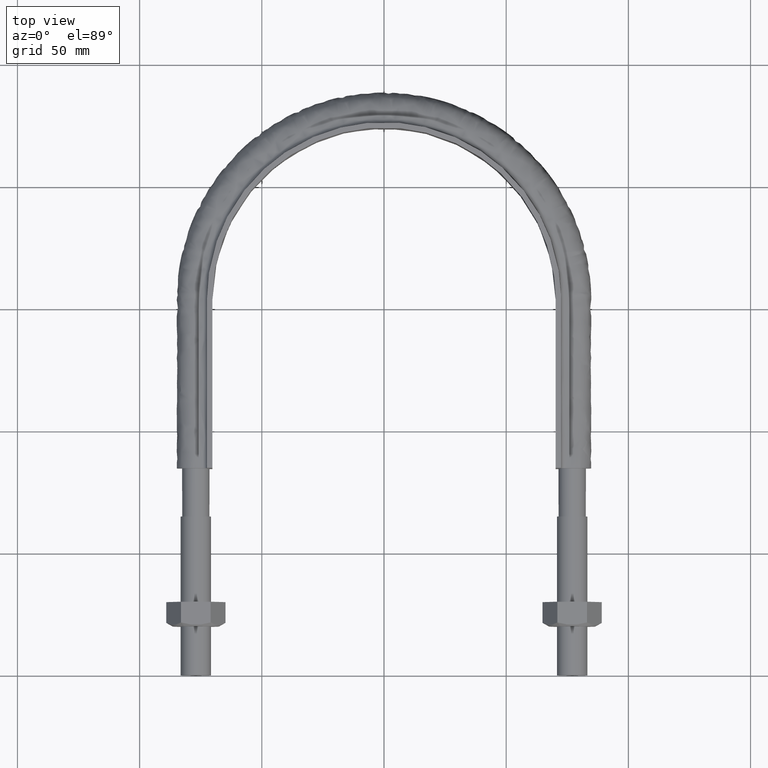
[diagram: clean part render]
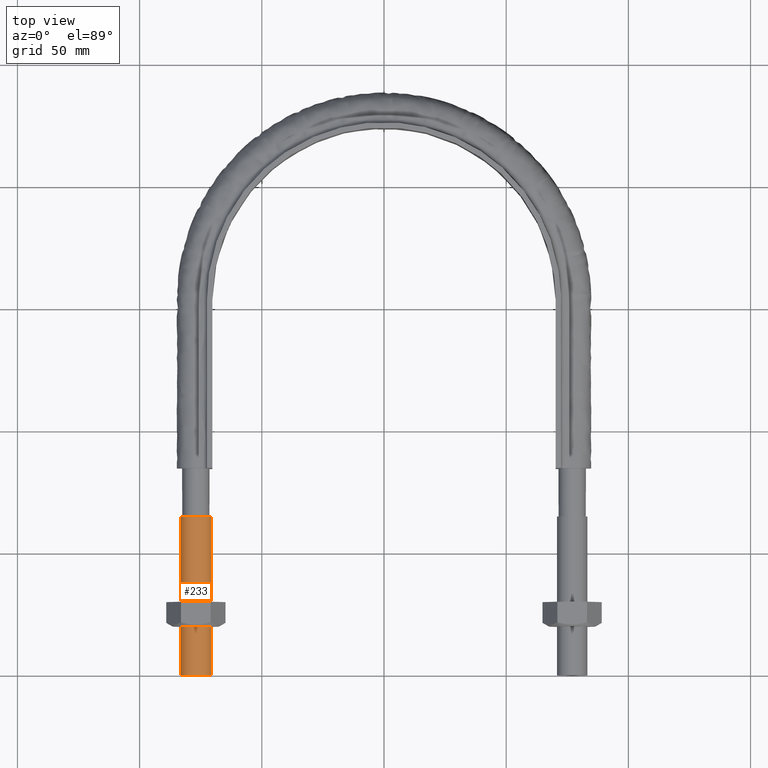
[diagram: same view with one face highlighted and labeled with its STEP entity id]
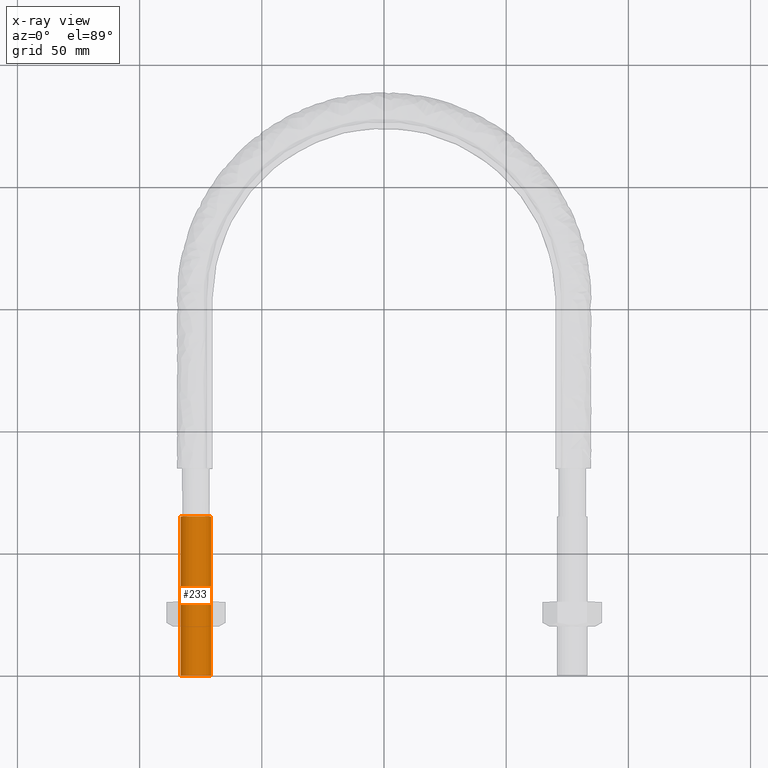
[diagram: x-ray of the same camera — body ghosted, the highlighted face saturated]
A machine part, top view. The second image highlights one B-rep face of the part: STEP entity #233.
The next image is the same camera in x-ray: the body ghosted, the highlighted face saturated — about 0% of this face is hidden behind the body in this view.
In plain terms, the highlighted cylindrical surface (bore or boss wall) has radius 6.25 mm, axis along (0, 1, -0).
Its self-contained STEP definition (entity closure, byte-faithful):
#233 = ADVANCED_FACE( '', ( #296, #297 ), #298, .T. );
#296 = FACE_OUTER_BOUND( '', #1244, .T. );
#297 = FACE_OUTER_BOUND( '', #1245, .T. );
#298 = CYLINDRICAL_SURFACE( '', #1246, 6.25000000000001 );
#1244 = EDGE_LOOP( '', ( #1425 ) );
#1245 = EDGE_LOOP( '', ( #1426 ) );
#1246 = AXIS2_PLACEMENT_3D( '', #1427, #1428, #1429 );
#1425 = ORIENTED_EDGE( '', *, *, #1634, .T. );
#1426 = ORIENTED_EDGE( '', *, *, #1633, .F. );
#1427 = CARTESIAN_POINT( '', ( -77.0000000000000, 65.0000000000000, -1.98998532496136E-014 ) );
#1428 = DIRECTION( '', ( 2.44921270764475E-016, 1.00000000000000, -3.06151588455594E-016 ) );
#1429 = DIRECTION( '', ( 1.00000000000000, -2.44921270764475E-016, 0.000000000000000 ) );
#1633 = EDGE_CURVE( '', #1745, #1745, #1746, .T. );
#1634 = EDGE_CURVE( '', #1747, #1747, #1748, .T. );
#1745 = VERTEX_POINT( '', #2087 );
#1746 = CIRCLE( '', #2088, 6.25000000000001 );
#1747 = VERTEX_POINT( '', #2089 );
#1748 = CIRCLE( '', #2090, 6.25000000000001 );
#2087 = CARTESIAN_POINT( '', ( -77.0000000000000, 1.19643403799670E-014, -6.25000000000001 ) );
#2088 = AXIS2_PLACEMENT_3D( '', #2345, #2346, #2347 );
#2089 = CARTESIAN_POINT( '', ( -77.0000000000000, 65.0000000000000, -6.25000000000003 ) );
#2090 = AXIS2_PLACEMENT_3D( '', #2348, #2349, #2350 );
#2345 = CARTESIAN_POINT( '', ( -77.0000000000000, 1.38777878078145E-014, 3.08148791101958E-030 ) );
#2346 = DIRECTION( '', ( -2.44921270764475E-016, -1.00000000000000, 3.06151588455594E-016 ) );
#2347 = DIRECTION( '', ( 0.000000000000000, -3.06151588455594E-016, -1.00000000000000 ) );
#2348 = CARTESIAN_POINT( '', ( -77.0000000000000, 65.0000000000000, -1.98998532496136E-014 ) );
#2349 = DIRECTION( '', ( -2.44921270764475E-016, -1.00000000000000, 3.06151588455594E-016 ) );
#2350 = DIRECTION( '', ( 0.000000000000000, -3.06151588455594E-016, -1.00000000000000 ) );